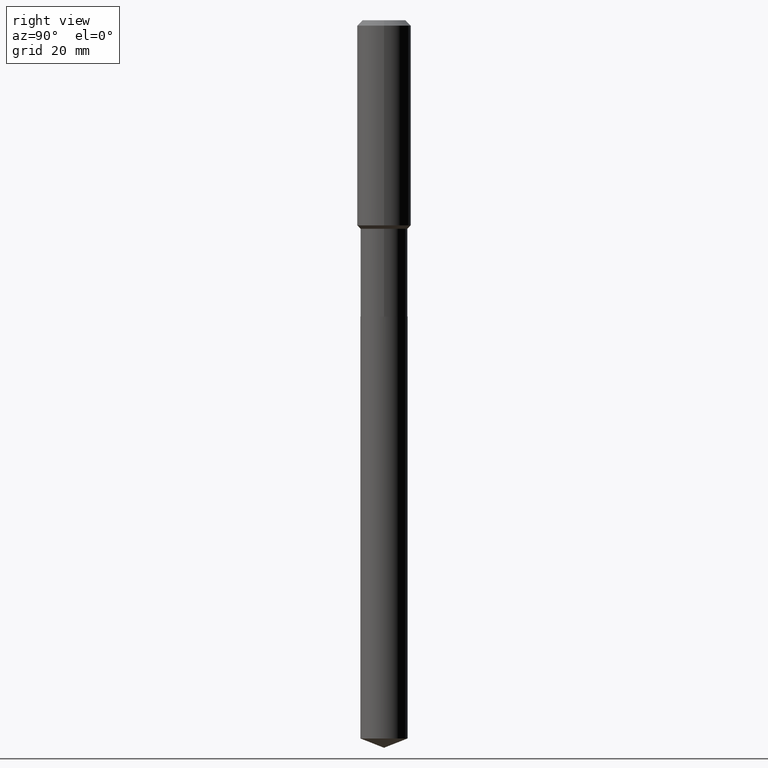
[diagram: clean part render]
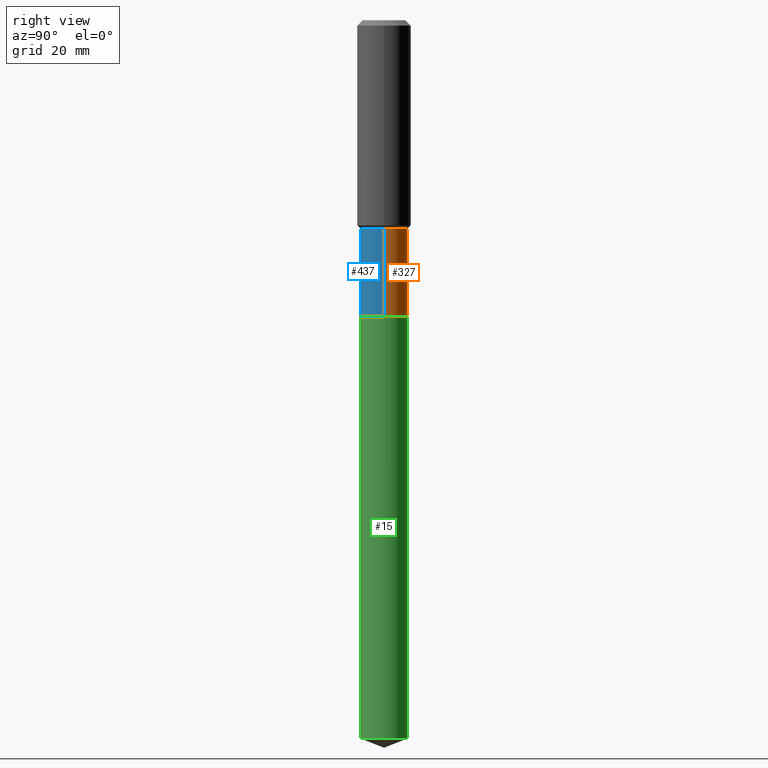
[diagram: same view with three faces highlighted in distinct colors, each labeled with its STEP entity id]
A machine part, right view with three faces highlighted in distinct colors.
Their STEP definitions:

[orange] entity #327 — the highlighted cylindrical surface (edge-blend (fillet) strip) has radius 5.2502 mm, axis along (-0, 0, 1).
#2 = DIRECTION ( 'NONE',  ( -2.445468806185136597E-29, 3.491481338843145583E-15, 1.000000000000000000 ) ) ;
#10 = EDGE_CURVE ( 'NONE', #375, #441, #206, .T. ) ;
#44 = DIRECTION ( 'NONE',  ( -2.445468806185136877E-29, 3.491481338843145188E-15, 1.000000000000000000 ) ) ;
#48 = ORIENTED_EDGE ( 'NONE', *, *, #486, .F. ) ;
#50 = VECTOR ( 'NONE', #160, 39.37007874015748143 ) ;
#72 = AXIS2_PLACEMENT_3D ( 'NONE', #449, #115, #86 ) ;
#76 = LINE ( 'NONE', #223, #93 ) ;
#83 = EDGE_CURVE ( 'NONE', #441, #279, #76, .T. ) ;
#86 = DIRECTION ( 'NONE',  ( 1.000000000000000000, -6.982962677686265922E-15, 4.876176775795935793E-29 ) ) ;
#93 = VECTOR ( 'NONE', #44, 39.37007874015748143 ) ;
#101 = EDGE_CURVE ( 'NONE', #166, #279, #152, .T. ) ;
#102 = ORIENTED_EDGE ( 'NONE', *, *, #101, .F. ) ;
#115 = DIRECTION ( 'NONE',  ( -2.445468806185136597E-29, 3.491481338843145583E-15, 1.000000000000000000 ) ) ;
#117 = EDGE_LOOP ( 'NONE', ( #158, #124, #102, #48 ) ) ;
#124 = ORIENTED_EDGE ( 'NONE', *, *, #83, .T. ) ;
#145 = AXIS2_PLACEMENT_3D ( 'NONE', #213, #445, #254 ) ;
#152 = CIRCLE ( 'NONE', #415, 0.2066999999999999116 ) ;
#158 = ORIENTED_EDGE ( 'NONE', *, *, #10, .T. ) ;
#160 = DIRECTION ( 'NONE',  ( -2.445468806185136877E-29, 3.491481338843145188E-15, 1.000000000000000000 ) ) ;
#166 = VERTEX_POINT ( 'NONE', #338 ) ;
#188 = CARTESIAN_POINT ( 'NONE',  ( -0.2066999999999999671, -6.257258071775987591E-15, -2.597900000000000542 ) ) ;
#206 = CIRCLE ( 'NONE', #145, 0.2067000000000000226 ) ;
#213 = CARTESIAN_POINT ( 'NONE',  ( 6.353083411588368076E-29, -9.070519370180611907E-15, -2.597900000000000542 ) ) ;
#223 = CARTESIAN_POINT ( 'NONE',  ( -0.2066999999999999393, 1.468691834816126653E-15, -1.016743883155688725E-29 ) ) ;
#254 = DIRECTION ( 'NONE',  ( 1.000000000000000000, -6.982962677686269866E-15, 0.000000000000000000 ) ) ;
#268 = LINE ( 'NONE', #337, #50 ) ;
#279 = VERTEX_POINT ( 'NONE', #370 ) ;
#289 = CYLINDRICAL_SURFACE ( 'NONE', #72, 0.2066999999999999393 ) ;
#327 = ADVANCED_FACE ( 'NONE', ( #485 ), #289, .T. ) ;
#337 = CARTESIAN_POINT ( 'NONE',  ( 0.2066999999999999393, -1.443378385477750821E-15, 1.007905739557019640E-29 ) ) ;
#338 = CARTESIAN_POINT ( 'NONE',  ( 0.2066999999999999116, -7.824758828481370163E-15, -1.827700000000000768 ) ) ;
#368 = DIRECTION ( 'NONE',  ( 1.000000000000000000, -6.982962677686265133E-15, 0.000000000000000000 ) ) ;
#370 = CARTESIAN_POINT ( 'NONE',  ( -0.2066999999999999116, -6.257258071775988380E-15, -1.827700000000000768 ) ) ;
#375 = VERTEX_POINT ( 'NONE', #453 ) ;
#415 = AXIS2_PLACEMENT_3D ( 'NONE', #457, #2, #368 ) ;
#441 = VERTEX_POINT ( 'NONE', #188 ) ;
#445 = DIRECTION ( 'NONE',  ( -2.445468806185136597E-29, 3.491481338843145583E-15, 1.000000000000000000 ) ) ;
#449 = CARTESIAN_POINT ( 'NONE',  ( 0.000000000000000000, 0.000000000000000000, 0.000000000000000000 ) ) ;
#453 = CARTESIAN_POINT ( 'NONE',  ( 0.2067000000000000226, -1.051389775565836312E-14, -2.597900000000000542 ) ) ;
#457 = CARTESIAN_POINT ( 'NONE',  ( 4.469583337064576650E-29, -6.381380443003620525E-15, -1.827700000000000768 ) ) ;
#485 = FACE_OUTER_BOUND ( 'NONE', #117, .T. ) ;
#486 = EDGE_CURVE ( 'NONE', #375, #166, #268, .T. ) ;

[blue] entity #437 — the highlighted cylindrical surface (edge-blend (fillet) strip) has radius 5.2502 mm, axis along (-0, 0, 1).
#44 = DIRECTION ( 'NONE',  ( -2.445468806185136877E-29, 3.491481338843145188E-15, 1.000000000000000000 ) ) ;
#50 = VECTOR ( 'NONE', #160, 39.37007874015748143 ) ;
#53 = ORIENTED_EDGE ( 'NONE', *, *, #59, .F. ) ;
#55 = CIRCLE ( 'NONE', #392, 0.2066999999999999116 ) ;
#59 = EDGE_CURVE ( 'NONE', #279, #166, #55, .T. ) ;
#76 = LINE ( 'NONE', #223, #93 ) ;
#79 = CARTESIAN_POINT ( 'NONE',  ( 0.000000000000000000, 0.000000000000000000, 0.000000000000000000 ) ) ;
#83 = EDGE_CURVE ( 'NONE', #441, #279, #76, .T. ) ;
#93 = VECTOR ( 'NONE', #44, 39.37007874015748143 ) ;
#118 = DIRECTION ( 'NONE',  ( 1.000000000000000000, -6.982962677686265922E-15, 4.876176775795935793E-29 ) ) ;
#125 = DIRECTION ( 'NONE',  ( -2.445468806185136597E-29, 3.491481338843145583E-15, 1.000000000000000000 ) ) ;
#131 = ORIENTED_EDGE ( 'NONE', *, *, #346, .T. ) ;
#135 = AXIS2_PLACEMENT_3D ( 'NONE', #79, #225, #118 ) ;
#147 = ORIENTED_EDGE ( 'NONE', *, *, #486, .T. ) ;
#160 = DIRECTION ( 'NONE',  ( -2.445468806185136877E-29, 3.491481338843145188E-15, 1.000000000000000000 ) ) ;
#162 = CARTESIAN_POINT ( 'NONE',  ( 6.353083411588368076E-29, -9.070519370180611907E-15, -2.597900000000000542 ) ) ;
#166 = VERTEX_POINT ( 'NONE', #338 ) ;
#167 = CIRCLE ( 'NONE', #340, 0.2067000000000000226 ) ;
#179 = ORIENTED_EDGE ( 'NONE', *, *, #83, .F. ) ;
#188 = CARTESIAN_POINT ( 'NONE',  ( -0.2066999999999999671, -6.257258071775987591E-15, -2.597900000000000542 ) ) ;
#223 = CARTESIAN_POINT ( 'NONE',  ( -0.2066999999999999393, 1.468691834816126653E-15, -1.016743883155688725E-29 ) ) ;
#225 = DIRECTION ( 'NONE',  ( -2.445468806185136597E-29, 3.491481338843145583E-15, 1.000000000000000000 ) ) ;
#267 = DIRECTION ( 'NONE',  ( 1.000000000000000000, -6.982962677686269866E-15, 0.000000000000000000 ) ) ;
#268 = LINE ( 'NONE', #337, #50 ) ;
#279 = VERTEX_POINT ( 'NONE', #370 ) ;
#295 = DIRECTION ( 'NONE',  ( 1.000000000000000000, -6.982962677686265133E-15, 0.000000000000000000 ) ) ;
#313 = EDGE_LOOP ( 'NONE', ( #179, #131, #147, #53 ) ) ;
#337 = CARTESIAN_POINT ( 'NONE',  ( 0.2066999999999999393, -1.443378385477750821E-15, 1.007905739557019640E-29 ) ) ;
#338 = CARTESIAN_POINT ( 'NONE',  ( 0.2066999999999999116, -7.824758828481370163E-15, -1.827700000000000768 ) ) ;
#340 = AXIS2_PLACEMENT_3D ( 'NONE', #162, #125, #267 ) ;
#345 = FACE_OUTER_BOUND ( 'NONE', #313, .T. ) ;
#346 = EDGE_CURVE ( 'NONE', #441, #375, #167, .T. ) ;
#370 = CARTESIAN_POINT ( 'NONE',  ( -0.2066999999999999116, -6.257258071775988380E-15, -1.827700000000000768 ) ) ;
#375 = VERTEX_POINT ( 'NONE', #453 ) ;
#392 = AXIS2_PLACEMENT_3D ( 'NONE', #408, #424, #295 ) ;
#408 = CARTESIAN_POINT ( 'NONE',  ( 4.469583337064576650E-29, -6.381380443003620525E-15, -1.827700000000000768 ) ) ;
#424 = DIRECTION ( 'NONE',  ( -2.445468806185136597E-29, 3.491481338843145583E-15, 1.000000000000000000 ) ) ;
#437 = ADVANCED_FACE ( 'NONE', ( #345 ), #461, .T. ) ;
#441 = VERTEX_POINT ( 'NONE', #188 ) ;
#453 = CARTESIAN_POINT ( 'NONE',  ( 0.2067000000000000226, -1.051389775565836312E-14, -2.597900000000000542 ) ) ;
#461 = CYLINDRICAL_SURFACE ( 'NONE', #135, 0.2066999999999999393 ) ;
#486 = EDGE_CURVE ( 'NONE', #375, #166, #268, .T. ) ;

[green] entity #15 — the highlighted cylindrical surface (edge-blend (fillet) strip) has radius 5.2502 mm, axis along (-0, 0, 1).
#15 = ADVANCED_FACE ( 'NONE', ( #363 ), #109, .T. ) ;
#23 = LINE ( 'NONE', #150, #78 ) ;
#29 = CIRCLE ( 'NONE', #297, 0.2067000000000000226 ) ;
#34 = DIRECTION ( 'NONE',  ( -2.445449169258695004E-29, 3.491509460039474509E-15, 1.000000000000000000 ) ) ;
#41 = CARTESIAN_POINT ( 'NONE',  ( 6.354306145991460877E-29, -9.072265110850034200E-15, -2.598400000000000709 ) ) ;
#52 = LINE ( 'NONE', #194, #212 ) ;
#78 = VECTOR ( 'NONE', #146, 39.37007874015748143 ) ;
#109 = CYLINDRICAL_SURFACE ( 'NONE', #253, 0.2067000000000000226 ) ;
#121 = VERTEX_POINT ( 'NONE', #435 ) ;
#142 = DIRECTION ( 'NONE',  ( -6.982962677686265133E-15, -1.000000000000000000, 2.643297526525653668E-15 ) ) ;
#143 = ORIENTED_EDGE ( 'NONE', *, *, #270, .T. ) ;
#146 = DIRECTION ( 'NONE',  ( -2.445449169258695004E-29, 3.491509460039474509E-15, 1.000000000000000000 ) ) ;
#150 = CARTESIAN_POINT ( 'NONE',  ( 1.468691834816190551E-15, 0.2066999999999909188, -2.598400000000001597 ) ) ;
#154 = VERTEX_POINT ( 'NONE', #446 ) ;
#161 = VERTEX_POINT ( 'NONE', #478 ) ;
#194 = CARTESIAN_POINT ( 'NONE',  ( -1.443378385477687712E-15, -0.2067000000000090987, -2.598400000000000265 ) ) ;
#195 = ORIENTED_EDGE ( 'NONE', *, *, #283, .F. ) ;
#212 = VECTOR ( 'NONE', #428, 39.37007874015748143 ) ;
#217 = CARTESIAN_POINT ( 'NONE',  ( 1.539776964222985142E-28, -2.198414189224705960E-14, -6.296478704690392725 ) ) ;
#221 = DIRECTION ( 'NONE',  ( -6.982962677686265133E-15, -1.000000000000000000, 5.286595053051307336E-15 ) ) ;
#222 = EDGE_CURVE ( 'NONE', #121, #161, #52, .T. ) ;
#233 = CARTESIAN_POINT ( 'NONE',  ( 1.468691834816282059E-15, 0.2066999999999909743, -2.598400000000001597 ) ) ;
#247 = ORIENTED_EDGE ( 'NONE', *, *, #305, .T. ) ;
#253 = AXIS2_PLACEMENT_3D ( 'NONE', #320, #286, #142 ) ;
#270 = EDGE_CURVE ( 'NONE', #121, #154, #418, .T. ) ;
#283 = EDGE_CURVE ( 'NONE', #161, #378, #29, .T. ) ;
#286 = DIRECTION ( 'NONE',  ( -2.445449169258695004E-29, 3.491509460039474509E-15, 1.000000000000000000 ) ) ;
#297 = AXIS2_PLACEMENT_3D ( 'NONE', #41, #34, #476 ) ;
#305 = EDGE_CURVE ( 'NONE', #154, #378, #23, .T. ) ;
#320 = CARTESIAN_POINT ( 'NONE',  ( 6.354306145991460877E-29, -9.072265110850034200E-15, -2.598400000000000709 ) ) ;
#363 = FACE_OUTER_BOUND ( 'NONE', #381, .T. ) ;
#364 = DIRECTION ( 'NONE',  ( -2.445449169258695004E-29, 3.491509460039474509E-15, 1.000000000000000000 ) ) ;
#373 = ORIENTED_EDGE ( 'NONE', *, *, #222, .F. ) ;
#378 = VERTEX_POINT ( 'NONE', #233 ) ;
#381 = EDGE_LOOP ( 'NONE', ( #143, #247, #195, #373 ) ) ;
#405 = AXIS2_PLACEMENT_3D ( 'NONE', #217, #364, #221 ) ;
#418 = CIRCLE ( 'NONE', #405, 0.2067000000000000226 ) ;
#428 = DIRECTION ( 'NONE',  ( -2.445449169258695004E-29, 3.491509460039474509E-15, 1.000000000000000000 ) ) ;
#435 = CARTESIAN_POINT ( 'NONE',  ( -1.443378385477597190E-15, -0.2067000000000219773, -6.296478704690391837 ) ) ;
#446 = CARTESIAN_POINT ( 'NONE',  ( 1.468691834816281073E-15, 0.2066999999999780124, -6.296478704690394501 ) ) ;
#476 = DIRECTION ( 'NONE',  ( -6.982962677686265133E-15, -1.000000000000000000, 2.643297526525653668E-15 ) ) ;
#478 = CARTESIAN_POINT ( 'NONE',  ( -1.443378385477687712E-15, -0.2067000000000090987, -2.598400000000000265 ) ) ;